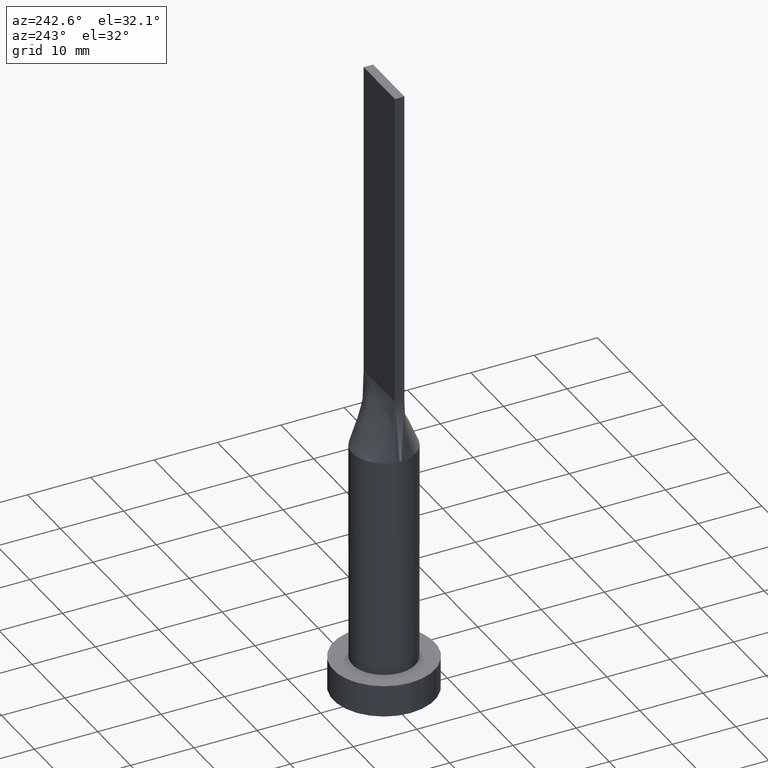
[diagram: clean part render]
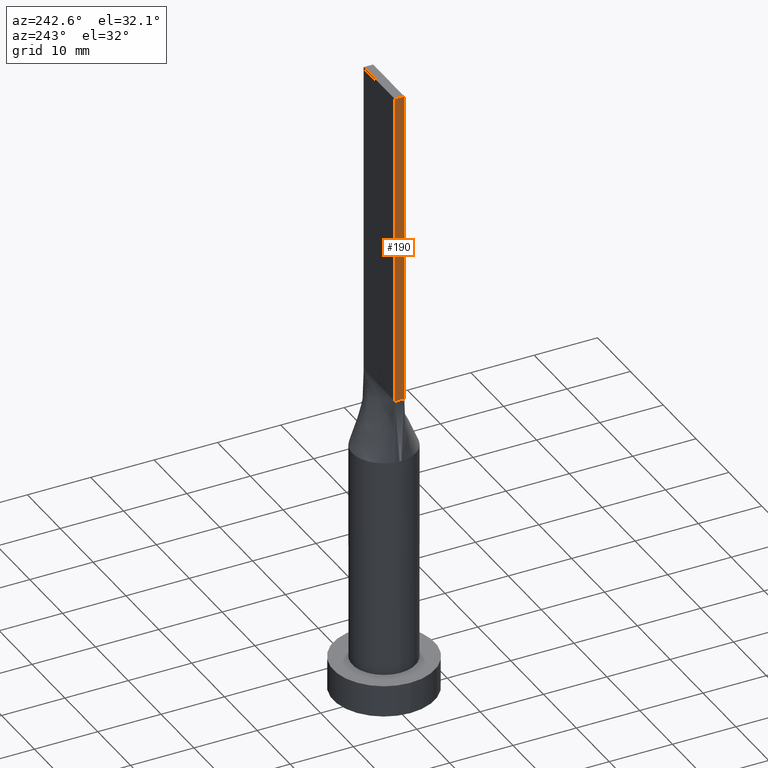
[diagram: same view with one face highlighted and labeled with its STEP entity id]
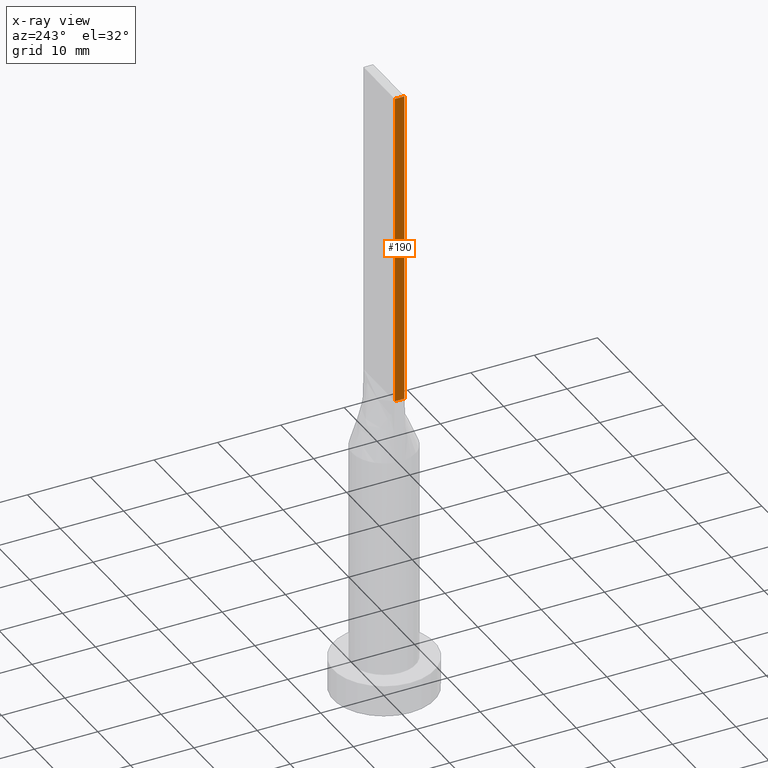
[diagram: x-ray of the same camera — body ghosted, the highlighted face saturated]
A machine part, auxiliary view. The second image highlights one B-rep face of the part: STEP entity #190.
The next image is the same camera in x-ray: the body ghosted, the highlighted face saturated — about 0% of this face is hidden behind the body in this view.
In plain terms, the highlighted planar face has unit normal (1, 0, -0).
Its self-contained STEP definition (entity closure, byte-faithful):
#2 = DIRECTION ( 'NONE',  ( 0.000000000000000000, -1.000000000000000000, 0.000000000000000000 ) ) ;
#28 = VERTEX_POINT ( 'NONE', #267 ) ;
#46 = CARTESIAN_POINT ( 'NONE',  ( -4.750000000000000000, 0.7500000000000002220, 50.00000000000000000 ) ) ;
#49 = FACE_OUTER_BOUND ( 'NONE', #139, .T. ) ;
#75 = ORIENTED_EDGE ( 'NONE', *, *, #591, .T. ) ;
#85 = VECTOR ( 'NONE', #279, 1000.000000000000000 ) ;
#86 = CARTESIAN_POINT ( 'NONE',  ( -4.750000000000000000, 0.7500000000000002220, 100.0000000000000000 ) ) ;
#89 = VERTEX_POINT ( 'NONE', #469 ) ;
#94 = VECTOR ( 'NONE', #598, 1000.000000000000000 ) ;
#126 = VERTEX_POINT ( 'NONE', #152 ) ;
#139 = EDGE_LOOP ( 'NONE', ( #162, #573, #444, #75 ) ) ;
#152 = CARTESIAN_POINT ( 'NONE',  ( -4.750000000000000000, -0.7499999999999991118, 50.00000000000000000 ) ) ;
#162 = ORIENTED_EDGE ( 'NONE', *, *, #533, .T. ) ;
#190 = ADVANCED_FACE ( 'NONE', ( #49 ), #241, .F. ) ;
#197 = CARTESIAN_POINT ( 'NONE',  ( -4.750000000000000000, 0.7500000000000002220, 100.0000000000000000 ) ) ;
#199 = CARTESIAN_POINT ( 'NONE',  ( -4.750000000000000000, 0.7500000000000002220, 50.00000000000000000 ) ) ;
#241 = PLANE ( 'NONE',  #280 ) ;
#249 = VECTOR ( 'NONE', #287, 1000.000000000000000 ) ;
#267 = CARTESIAN_POINT ( 'NONE',  ( -4.750000000000000000, 0.7500000000000002220, 100.0000000000000000 ) ) ;
#270 = LINE ( 'NONE', #86, #94 ) ;
#279 = DIRECTION ( 'NONE',  ( -0.000000000000000000, -0.000000000000000000, -1.000000000000000000 ) ) ;
#280 = AXIS2_PLACEMENT_3D ( 'NONE', #197, #291, #484 ) ;
#287 = DIRECTION ( 'NONE',  ( -0.000000000000000000, -0.000000000000000000, -1.000000000000000000 ) ) ;
#291 = DIRECTION ( 'NONE',  ( 1.000000000000000000, 0.000000000000000000, -0.000000000000000000 ) ) ;
#336 = LINE ( 'NONE', #46, #467 ) ;
#342 = EDGE_CURVE ( 'NONE', #28, #89, #270, .T. ) ;
#379 = LINE ( 'NONE', #521, #85 ) ;
#423 = CARTESIAN_POINT ( 'NONE',  ( -4.750000000000000000, 0.7500000000000002220, 100.0000000000000000 ) ) ;
#444 = ORIENTED_EDGE ( 'NONE', *, *, #342, .F. ) ;
#467 = VECTOR ( 'NONE', #2, 1000.000000000000000 ) ;
#469 = CARTESIAN_POINT ( 'NONE',  ( -4.750000000000000000, -0.7499999999999991118, 100.0000000000000000 ) ) ;
#477 = LINE ( 'NONE', #423, #249 ) ;
#484 = DIRECTION ( 'NONE',  ( -0.000000000000000000, 0.000000000000000000, -1.000000000000000000 ) ) ;
#521 = CARTESIAN_POINT ( 'NONE',  ( -4.750000000000000000, -0.7499999999999991118, 100.0000000000000000 ) ) ;
#533 = EDGE_CURVE ( 'NONE', #582, #126, #336, .T. ) ;
#572 = EDGE_CURVE ( 'NONE', #89, #126, #379, .T. ) ;
#573 = ORIENTED_EDGE ( 'NONE', *, *, #572, .F. ) ;
#582 = VERTEX_POINT ( 'NONE', #199 ) ;
#591 = EDGE_CURVE ( 'NONE', #28, #582, #477, .T. ) ;
#598 = DIRECTION ( 'NONE',  ( 0.000000000000000000, -1.000000000000000000, 0.000000000000000000 ) ) ;